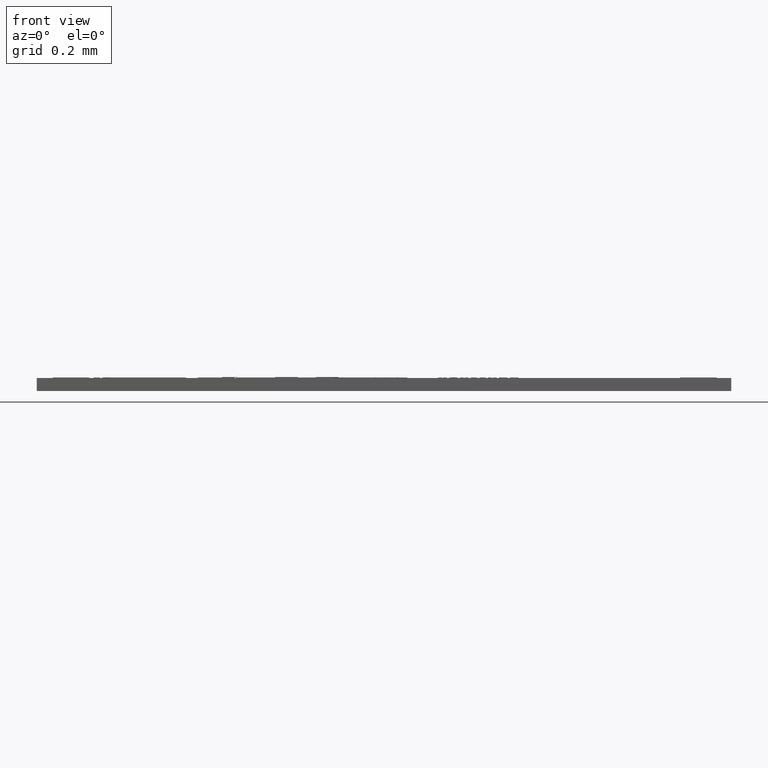
[diagram: clean part render]
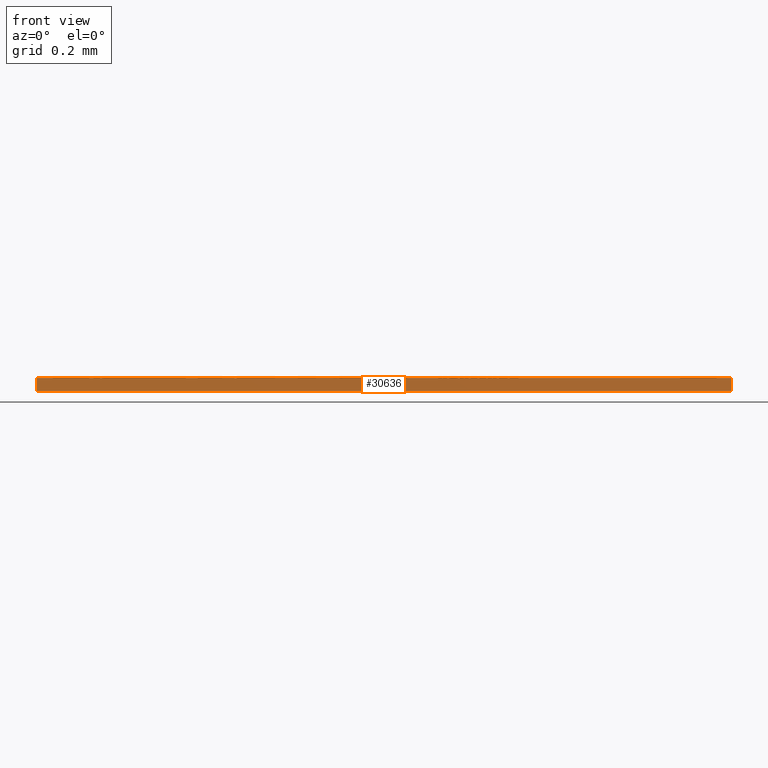
[diagram: same view with one face highlighted and labeled with its STEP entity id]
A machine part, front view. The second image highlights one B-rep face of the part: STEP entity #30636.
In plain terms, the highlighted planar face has unit normal (0, -1, 0).
Its self-contained STEP definition (entity closure, byte-faithful):
#29497=CARTESIAN_POINT('',(0.100984251968504,0.0,0.001889763779528));
#29498=VERTEX_POINT('',#29497);
#29499=CARTESIAN_POINT('',(0.0,0.0,0.001889763779528));
#29500=VERTEX_POINT('',#29499);
#29501=CARTESIAN_POINT('',(0.100984251968504,0.0,0.001889763779528));
#29502=DIRECTION('',(-1.0,0.0,0.0));
#29503=VECTOR('',#29502,0.100984251968504);
#29504=LINE('',#29501,#29503);
#29505=EDGE_CURVE('',#29498,#29500,#29504,.T.);
#30606=CARTESIAN_POINT('',(0.100984251968504,0.0,0.0));
#30607=DIRECTION('',(0.0,-1.0,0.0));
#30608=DIRECTION('',(0.0,0.0,-1.0));
#30609=AXIS2_PLACEMENT_3D('',#30606,#30607,#30608);
#30610=PLANE('',#30609);
#30611=ORIENTED_EDGE('',*,*,#29505,.T.);
#30612=CARTESIAN_POINT('',(0.0,0.0,0.0));
#30613=VERTEX_POINT('',#30612);
#30614=CARTESIAN_POINT('',(0.0,0.0,0.0));
#30615=DIRECTION('',(0.0,0.0,1.0));
#30616=VECTOR('',#30615,0.001889763779528);
#30617=LINE('',#30614,#30616);
#30618=EDGE_CURVE('',#30613,#29500,#30617,.T.);
#30619=ORIENTED_EDGE('',*,*,#30618,.F.);
#30620=CARTESIAN_POINT('',(0.100984251968504,0.0,0.0));
#30621=VERTEX_POINT('',#30620);
#30622=CARTESIAN_POINT('',(0.0,0.0,0.0));
#30623=DIRECTION('',(1.0,0.0,0.0));
#30624=VECTOR('',#30623,0.100984251968504);
#30625=LINE('',#30622,#30624);
#30626=EDGE_CURVE('',#30613,#30621,#30625,.T.);
#30627=ORIENTED_EDGE('',*,*,#30626,.T.);
#30628=CARTESIAN_POINT('',(0.100984251968504,0.0,0.0));
#30629=DIRECTION('',(0.0,0.0,1.0));
#30630=VECTOR('',#30629,0.001889763779528);
#30631=LINE('',#30628,#30630);
#30632=EDGE_CURVE('',#30621,#29498,#30631,.T.);
#30633=ORIENTED_EDGE('',*,*,#30632,.T.);
#30634=EDGE_LOOP('',(#30611,#30619,#30627,#30633));
#30635=FACE_OUTER_BOUND('',#30634,.T.);
#30636=ADVANCED_FACE('',(#30635),#30610,.T.);